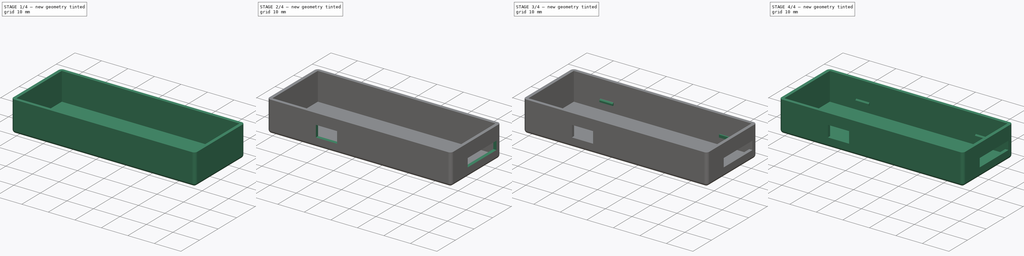
[diagram: build sequence overview — one tinted view per stage of 4, left to right]
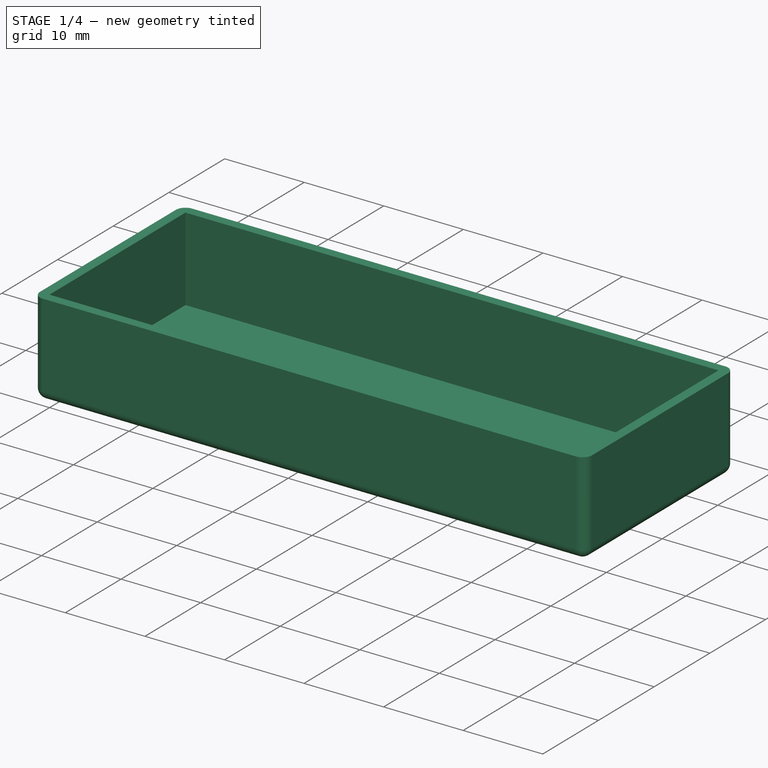
[diagram: stage 1 of 4 — iso view after this stage's code; geometry added in this stage tinted green]
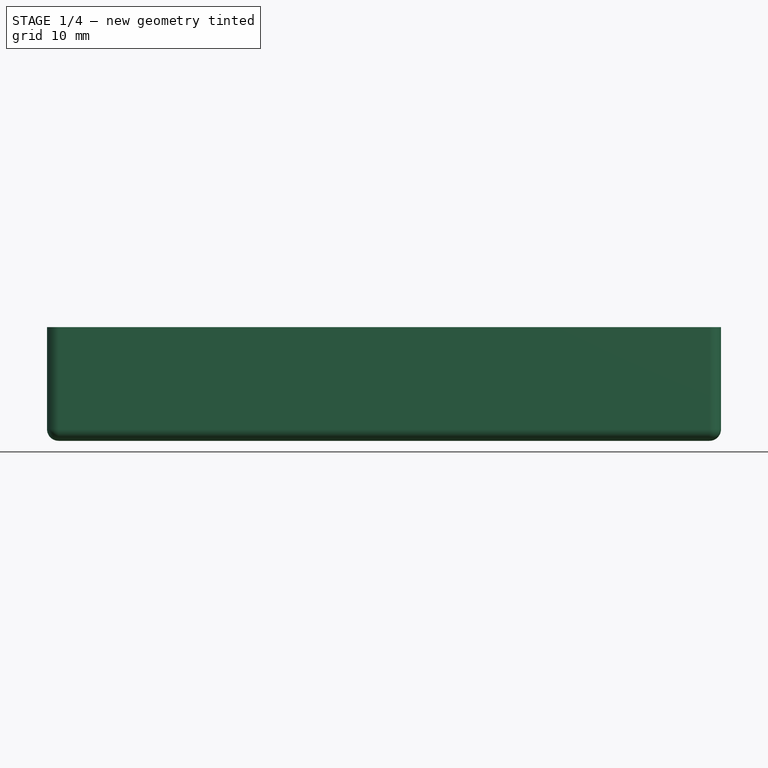
[diagram: stage 1 of 4 — front view after this stage's code; geometry added in this stage tinted green]
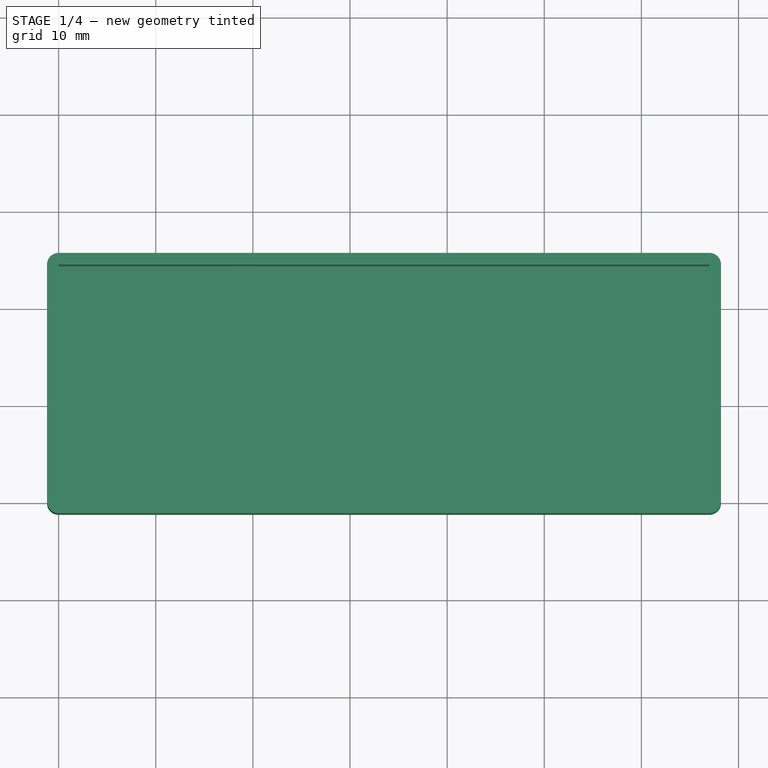
[diagram: stage 1 of 4 — top view after this stage's code; geometry added in this stage tinted green]
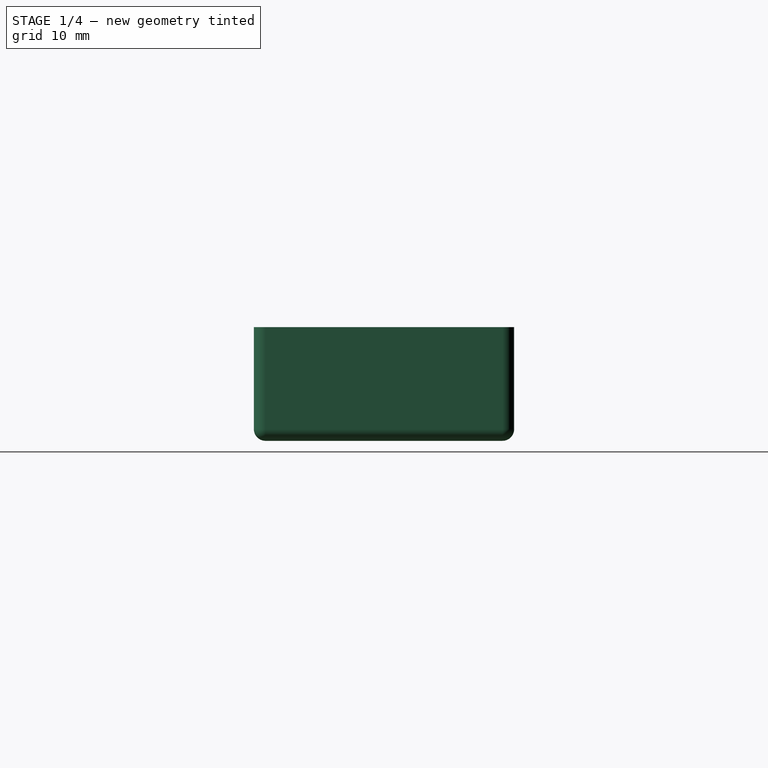
[diagram: stage 1 of 4 — right view after this stage's code; geometry added in this stage tinted green]
FCSTD DOCUMENT  (FreeCAD 0.18R4 (GitTag))
Label: STLINK
License: All rights reserved
LicenseURL: http://en.wikipedia.org/wiki/All_rights_reserved
objects: Sketcher::SketchObject×4, PartDesign::Chamfer×4, PartDesign::Pocket×2, PartDesign::Pad×2, Part::Box×1, Part::Thickness×1, PartDesign::FeatureBase×1, PartDesign::Body×1
note: 20 computed .brp shape members not serialized (recipe doc carries the construction recipe); baked Part::Feature solids carry a one-line shape summary decoded from their .brp

FEATURE [Part::Box] Box  label="立方体"
  AttacherType = Attacher::AttachEngine3D
  Height = 10.5
  Length = 67
  Width = 24.4
FEATURE [Part::Thickness] Thickness
  Faces = -> Box [Face6]
  Intersection = false
  Join = 0
  Mode = 0
  SelfIntersection = false
  Value = 1.2
FEATURE [Sketcher::SketchObject] Sketch
  MapMode = 5
  Placement = pos=(0,-1.2,0) rot=(1,0,0;1.5708rad)
  Support = -> [Thickness]
  sketch-geometry (4):
    g0: LineSegment StartX=17.189 StartY=6.4901 StartZ=0 EndX=25.189 EndY=6.4901 EndZ=0
    g1: LineSegment StartX=25.189 StartY=6.4901 StartZ=0 EndX=25.189 EndY=2.1901 EndZ=0
    g2: LineSegment StartX=25.189 StartY=2.1901 StartZ=0 EndX=17.189 EndY=2.1901 EndZ=0
    g3: LineSegment StartX=17.189 StartY=2.1901 StartZ=0 EndX=17.189 EndY=6.4901 EndZ=0
  constraints (10):
    c: Coincident(g0,g1)
    c: Coincident(g1,g2)
    c: Coincident(g2,g3)
    c: Coincident(g3,g0)
    c: Horizontal(g0)
    c: Horizontal(g2)
    c: Vertical(g1)
    c: Vertical(g3)
    c: DistanceX(g0,g0) = 8
    c: DistanceY(g1,g1) = 4.3
FEATURE [PartDesign::FeatureBase] BaseFeature
  BaseFeature = -> Thickness
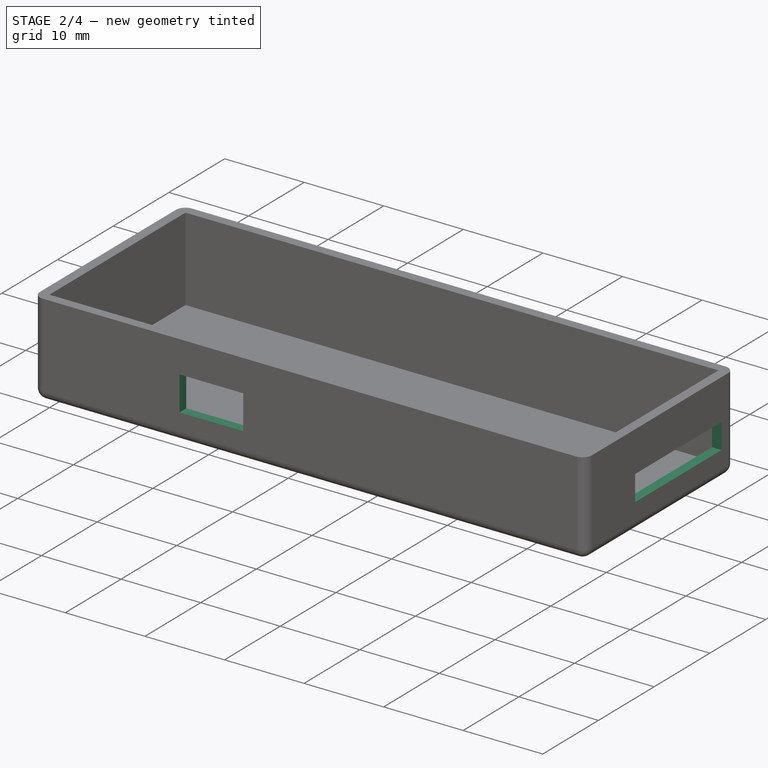
[diagram: stage 2 of 4 — iso view after this stage's code; geometry added in this stage tinted green]
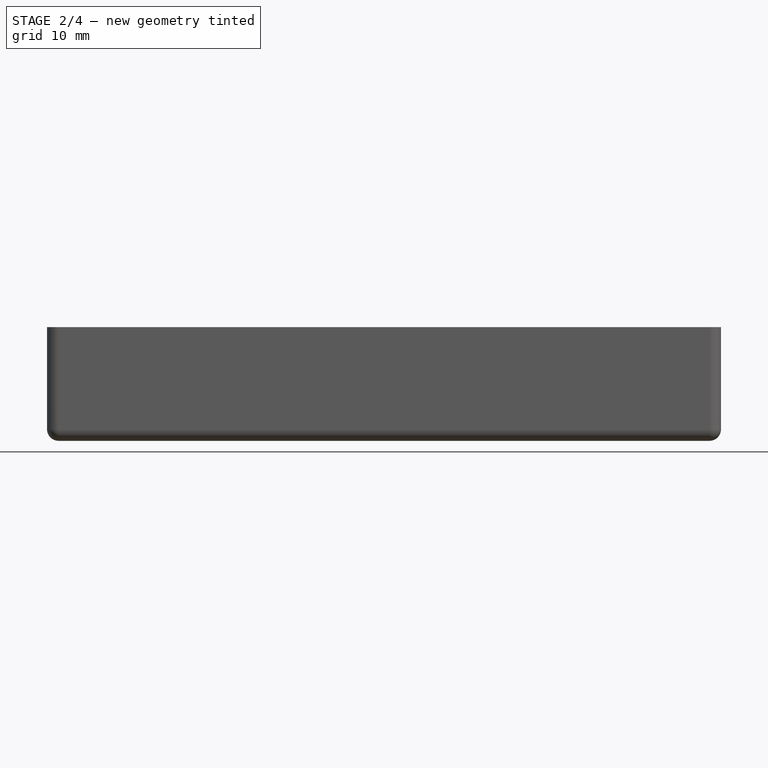
[diagram: stage 2 of 4 — front view after this stage's code; geometry added in this stage tinted green]
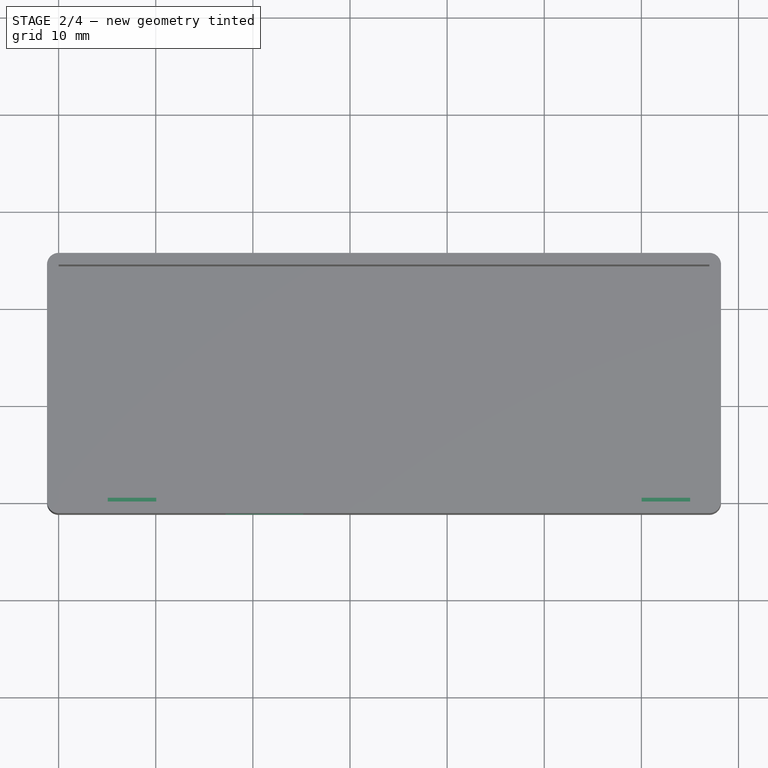
[diagram: stage 2 of 4 — top view after this stage's code; geometry added in this stage tinted green]
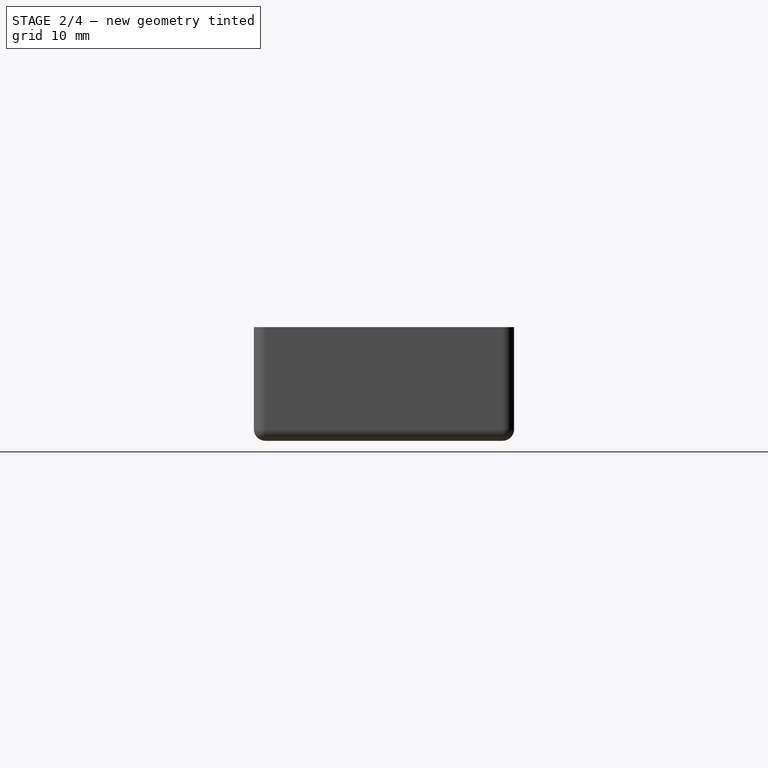
[diagram: stage 2 of 4 — right view after this stage's code; geometry added in this stage tinted green]
FEATURE [PartDesign::Pocket] Pocket  label="MINI USB"
  BaseFeature = -> BaseFeature
  Length = 5
  Length2 = 100
  Profile = -> Sketch
  Type = 0
FEATURE [Sketcher::SketchObject] Sketch001
  MapMode = 5
  Placement = pos=(68.2,0,0) rot=(0.57735,0.57735,0.57735;2.0944rad)
  Support = -> [Pocket]
  sketch-geometry (4):
    g0: LineSegment StartX=7.73101 StartY=5.41654 StartZ=0 EndX=23.231 EndY=5.41654 EndZ=0
    g1: LineSegment StartX=23.231 StartY=5.41654 StartZ=0 EndX=23.231 EndY=2.21654 EndZ=0
    g2: LineSegment StartX=23.231 StartY=2.21654 StartZ=0 EndX=7.73101 EndY=2.21654 EndZ=0
    g3: LineSegment StartX=7.73101 StartY=2.21654 StartZ=0 EndX=7.73101 EndY=5.41654 EndZ=0
  constraints (10):
    c: Coincident(g0,g1)
    c: Coincident(g1,g2)
    c: Coincident(g2,g3)
    c: Coincident(g3,g0)
    c: Horizontal(g0)
    c: Horizontal(g2)
    c: Vertical(g1)
    c: Vertical(g3)
    c: DistanceX(g0,g0) = 15.5
    c: DistanceY(g3,g3) = 3.2
FEATURE [PartDesign::Pocket] Pocket001  label="SWD"
  BaseFeature = -> Pocket
  Length = 5
  Length2 = 100
  Profile = -> Sketch001
  Type = 0
FEATURE [Sketcher::SketchObject] Sketch002
  MapMode = 5
  Placement = pos=(0,0,0) rot=(1,0,0;1.5708rad)
  Support = -> [Pocket001]
  sketch-geometry (8):
    g0: LineSegment StartX=5.0565 StartY=3.65278 StartZ=0 EndX=10.0565 EndY=3.65278 EndZ=0
    g1: LineSegment StartX=10.0565 StartY=3.65278 StartZ=0 EndX=10.0565 EndY=2.65278 EndZ=0
    g2: LineSegment StartX=10.0565 StartY=2.65278 StartZ=0 EndX=5.0565 EndY=2.65278 EndZ=0
    g3: LineSegment StartX=5.0565 StartY=2.65278 StartZ=0 EndX=5.0565 EndY=3.65278 EndZ=0
    g4: LineSegment StartX=60.0239 StartY=3.71387 StartZ=0 EndX=65.0239 EndY=3.71387 EndZ=0
    g5: LineSegment StartX=65.0239 StartY=3.71387 StartZ=0 EndX=65.0239 EndY=2.71387 EndZ=0
    g6: LineSegment StartX=65.0239 StartY=2.71387 StartZ=0 EndX=60.0239 EndY=2.71387 EndZ=0
    g7: LineSegment StartX=60.0239 StartY=2.71387 StartZ=0 EndX=60.0239 EndY=3.71387 EndZ=0
  constraints (20):
    c: Coincident(g0,g1)
    c: Coincident(g1,g2)
    c: Coincident(g2,g3)
    c: Coincident(g3,g0)
    c: Horizontal(g0)
    c: Horizontal(g2)
    c: Vertical(g1)
    c: Vertical(g3)
    c: DistanceX(g0,g0) = 5
    c: DistanceY(g1,g1) = 1
    c: Coincident(g4,g5)
    c: Coincident(g5,g6)
    c: Coincident(g6,g7)
    c: Coincident(g7,g4)
    c: Horizontal(g4)
    c: Horizontal(g6)
    c: Vertical(g5)
    c: Vertical(g7)
    c: DistanceX(g4,g4) = 5
    c: DistanceY(g7,g7) = 1
FEATURE [PartDesign::Pad] Pad
  BaseFeature = -> Pocket001
  Length = 0.5
  Length2 = 100
  Profile = -> Sketch002
  Reversed = true
  Type = 0
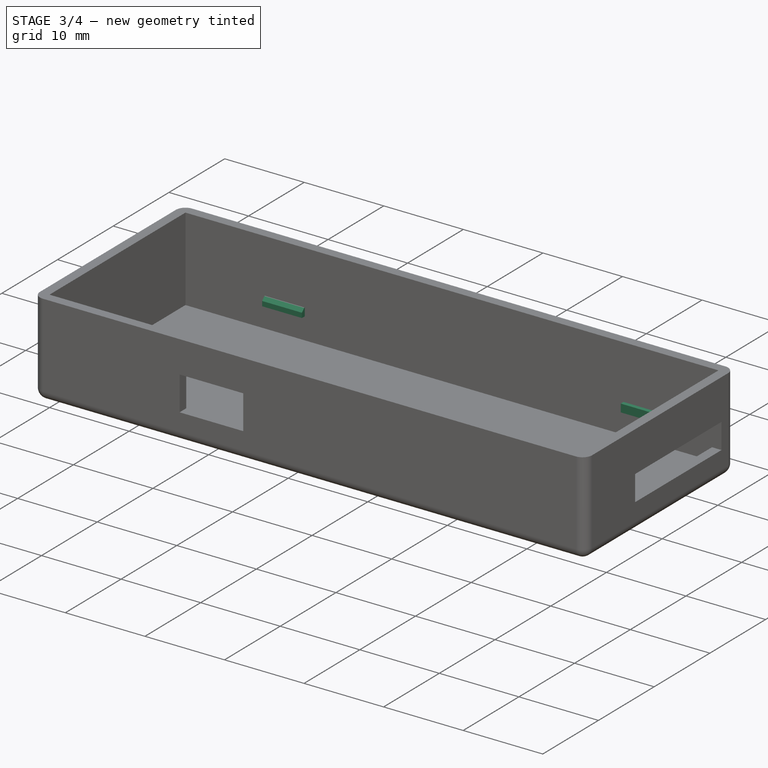
[diagram: stage 3 of 4 — iso view after this stage's code; geometry added in this stage tinted green]
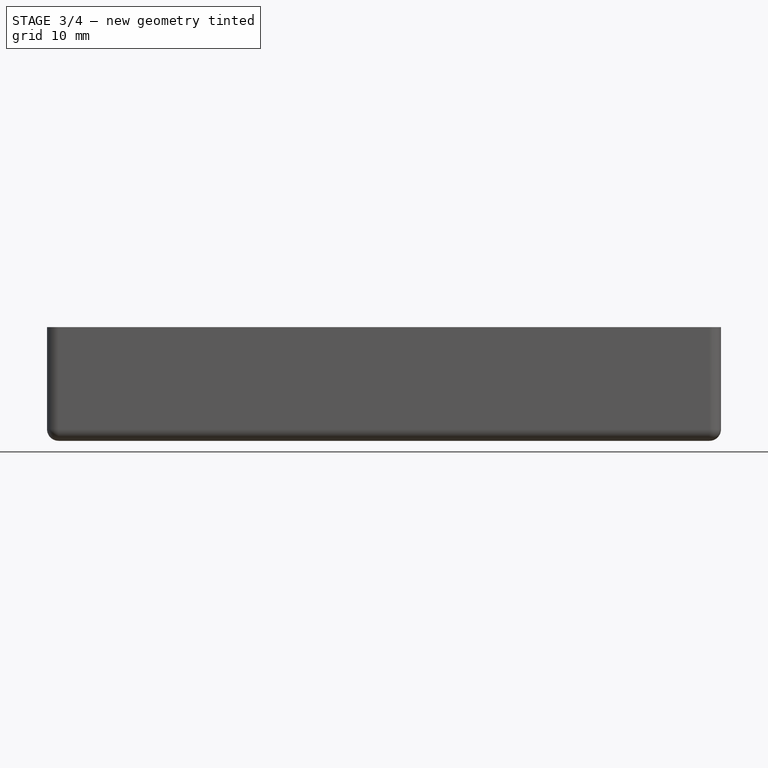
[diagram: stage 3 of 4 — front view after this stage's code; geometry added in this stage tinted green]
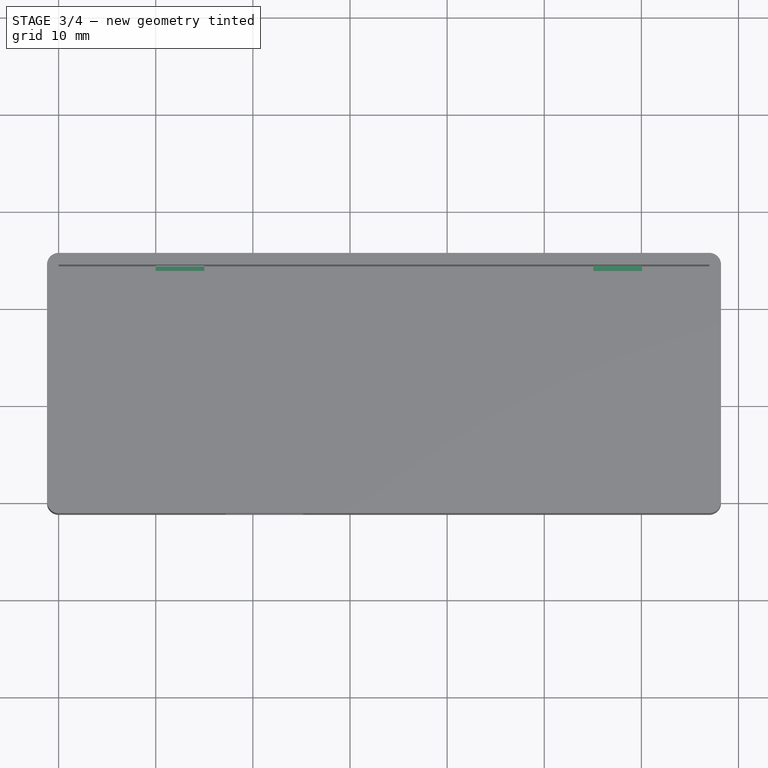
[diagram: stage 3 of 4 — top view after this stage's code; geometry added in this stage tinted green]
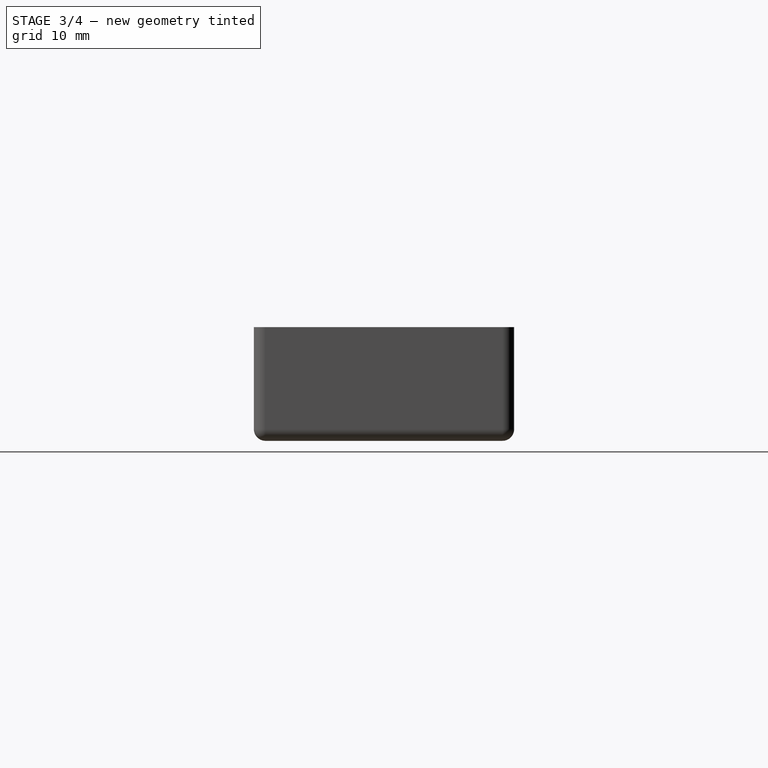
[diagram: stage 3 of 4 — right view after this stage's code; geometry added in this stage tinted green]
FEATURE [Sketcher::SketchObject] Sketch003
  MapMode = 5
  Placement = pos=(0,24.4,0) rot=(0,0.707107,0.707107;3.14159rad)
  Support = -> [Pad]
  sketch-geometry (8):
    g0: LineSegment StartX=-60.0641 StartY=3.7241 StartZ=0 EndX=-55.0641 EndY=3.7241 EndZ=0
    g1: LineSegment StartX=-55.0641 StartY=3.7241 StartZ=0 EndX=-55.0641 EndY=2.7241 EndZ=0
    g2: LineSegment StartX=-55.0641 StartY=2.7241 StartZ=0 EndX=-60.0641 EndY=2.7241 EndZ=0
    g3: LineSegment StartX=-60.0641 StartY=2.7241 StartZ=0 EndX=-60.0641 EndY=3.7241 EndZ=0
    g4: LineSegment StartX=-14.9908 StartY=3.7241 StartZ=0 EndX=-9.99075 EndY=3.7241 EndZ=0
    g5: LineSegment StartX=-9.99075 StartY=3.7241 StartZ=0 EndX=-9.99075 EndY=2.7241 EndZ=0
    g6: LineSegment StartX=-9.99075 StartY=2.7241 StartZ=0 EndX=-14.9908 EndY=2.7241 EndZ=0
    g7: LineSegment StartX=-14.9908 StartY=2.7241 StartZ=0 EndX=-14.9908 EndY=3.7241 EndZ=0
  constraints (20):
    c: Coincident(g0,g1)
    c: Coincident(g1,g2)
    c: Coincident(g2,g3)
    c: Coincident(g3,g0)
    c: Horizontal(g0)
    c: Horizontal(g2)
    c: Vertical(g1)
    c: Vertical(g3)
    c: Coincident(g4,g5)
    c: Coincident(g5,g6)
    c: Coincident(g6,g7)
    c: Coincident(g7,g4)
    c: Horizontal(g4)
    c: Horizontal(g6)
    c: Vertical(g5)
    c: Vertical(g7)
    c: DistanceX(g0,g0) = 5
    c: DistanceY(g3,g3) = 1
    c: DistanceY(g7,g7) = 1
    c: DistanceX(g4,g4) = 5
FEATURE [PartDesign::Pad] Pad001
  BaseFeature = -> Pad
  Length = 0.5
  Length2 = 100
  Profile = -> Sketch003
  Reversed = true
  Type = 0
FEATURE [PartDesign::Chamfer] Chamfer
  Base = -> Pad001 [Edge100]
  BaseFeature = -> Pad001
  Size = 0.4
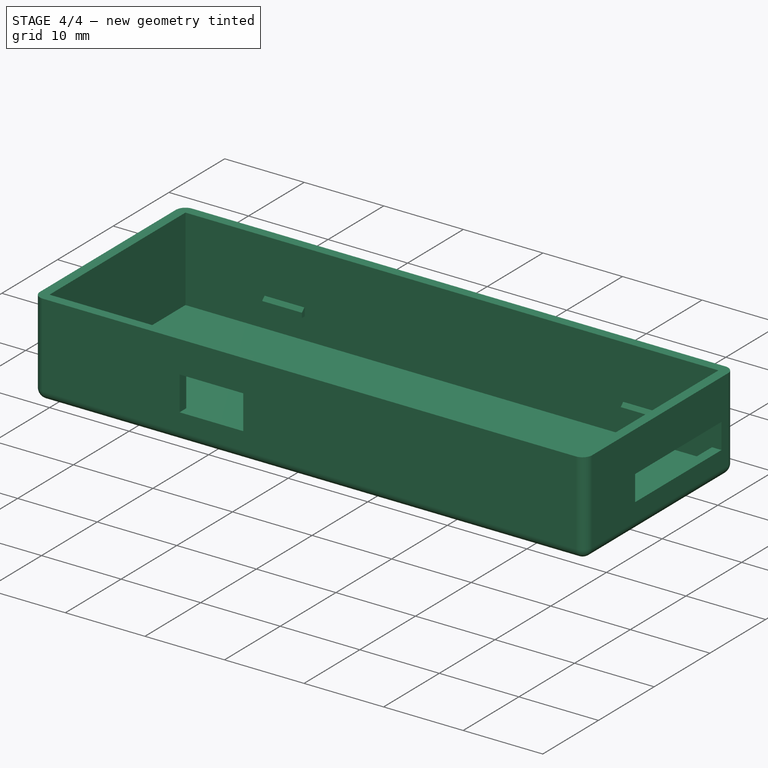
[diagram: stage 4 of 4 — iso view after this stage's code; geometry added in this stage tinted green]
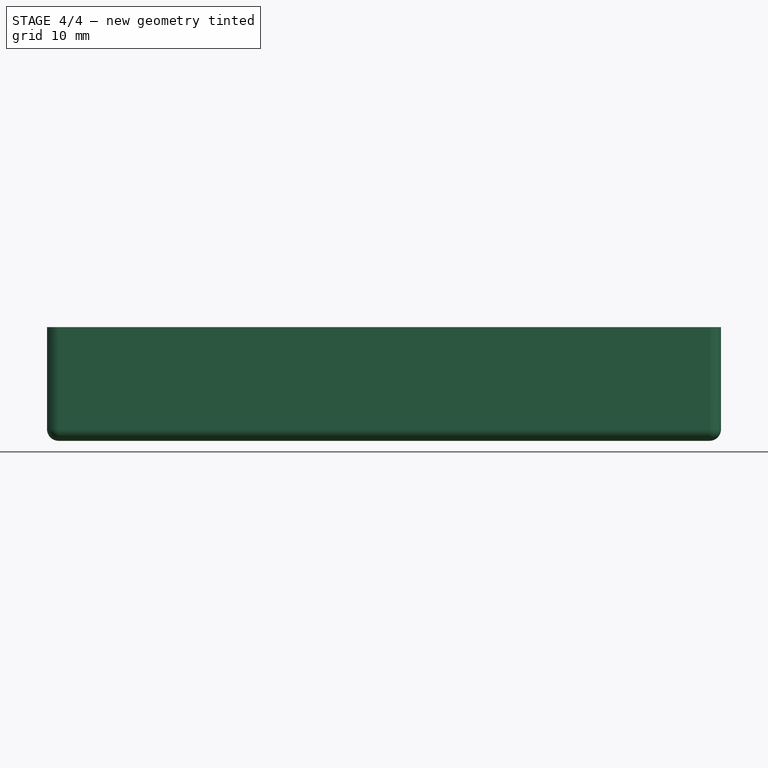
[diagram: stage 4 of 4 — front view after this stage's code; geometry added in this stage tinted green]
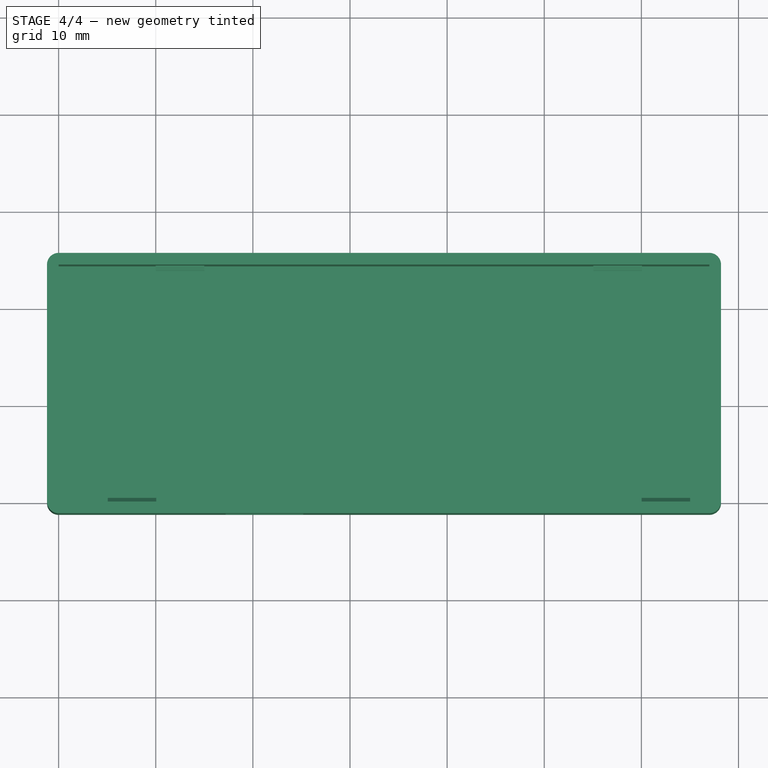
[diagram: stage 4 of 4 — top view after this stage's code; geometry added in this stage tinted green]
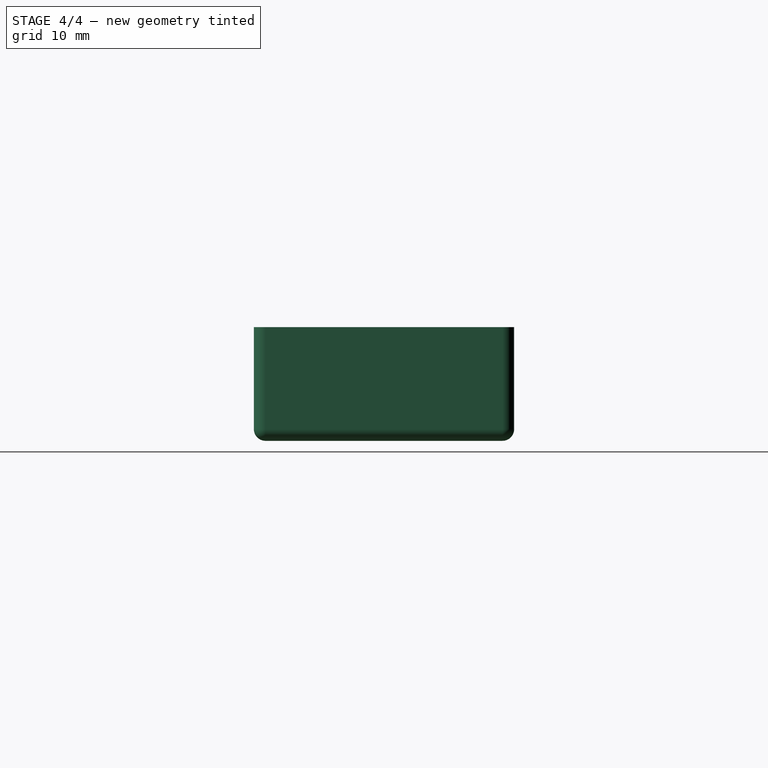
[diagram: stage 4 of 4 — right view after this stage's code; geometry added in this stage tinted green]
FEATURE [PartDesign::Chamfer] Chamfer001
  Base = -> Chamfer [Edge51]
  BaseFeature = -> Chamfer
  Size = 0.4
FEATURE [PartDesign::Chamfer] Chamfer002
  Base = -> Chamfer001 [Edge108]
  BaseFeature = -> Chamfer001
  Size = 0.4
FEATURE [PartDesign::Chamfer] Chamfer003
  Base = -> Chamfer002 [Edge49]
  BaseFeature = -> Chamfer002
  Size = 0.4
FEATURE [PartDesign::Body] Body
  BaseFeature = -> Thickness
  Group = -> [BaseFeature,Pocket,Sketch001,Pocket001,Sketch002,Pad,Sketch003,Pad001,Chamfer,Chamfer001,Chamfer002,Chamfer003]
  Origin = -> Origin
  Tip = -> Chamfer003
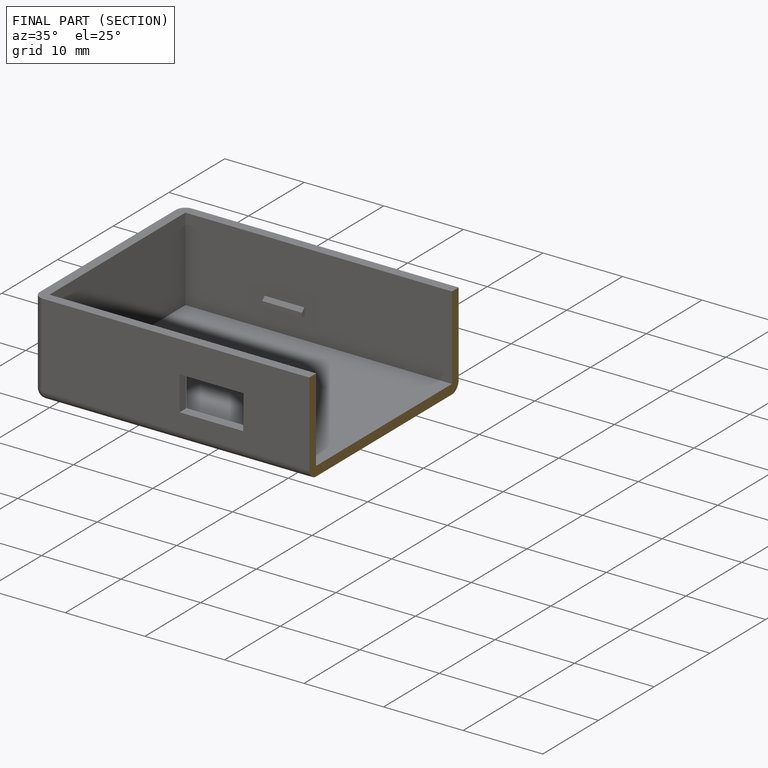
[diagram: finished part — half-section view (interior)]
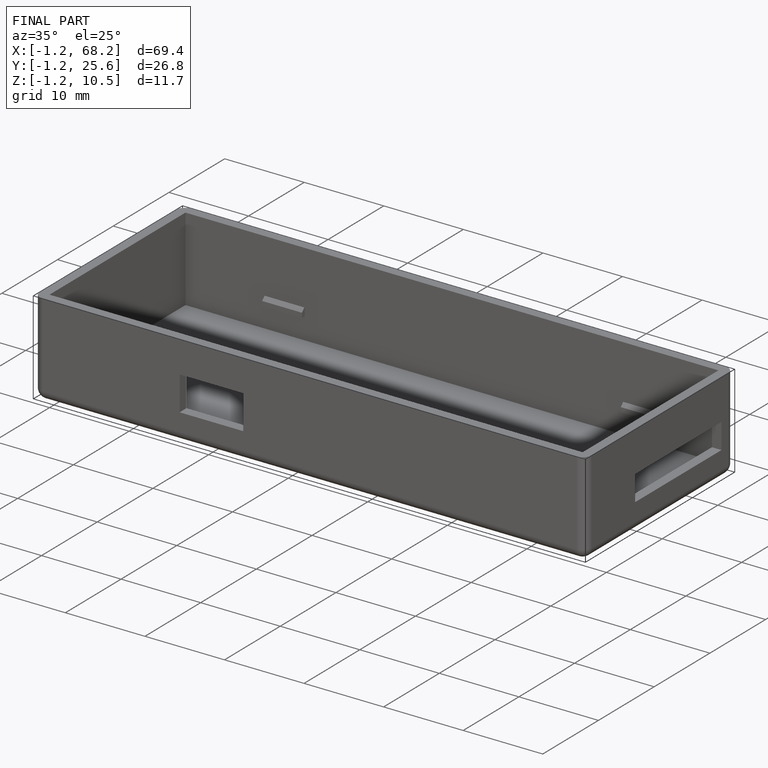
[diagram: finished part — iso view with bounding-box wireframe]
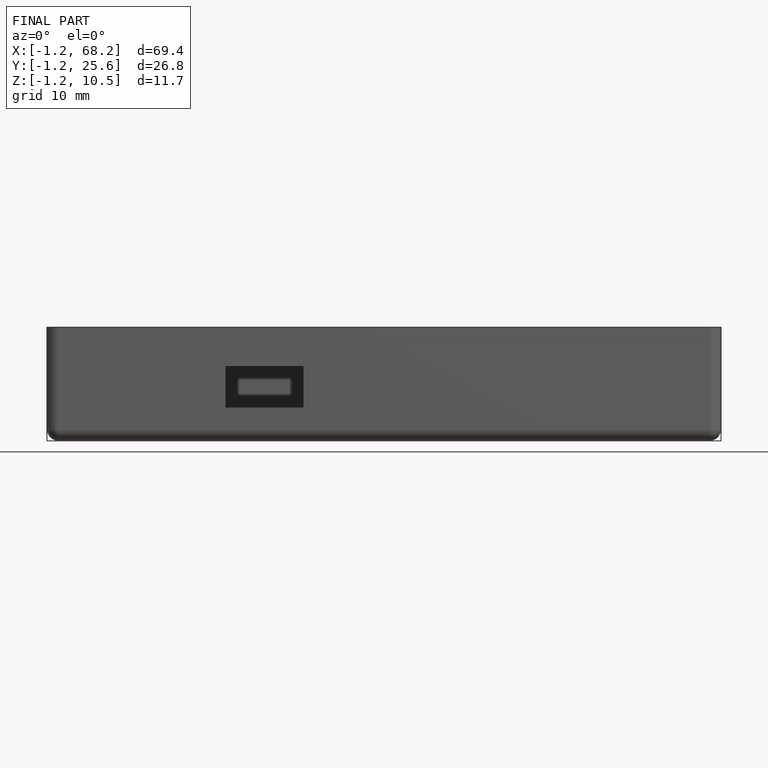
[diagram: finished part — front view with bounding-box wireframe]
